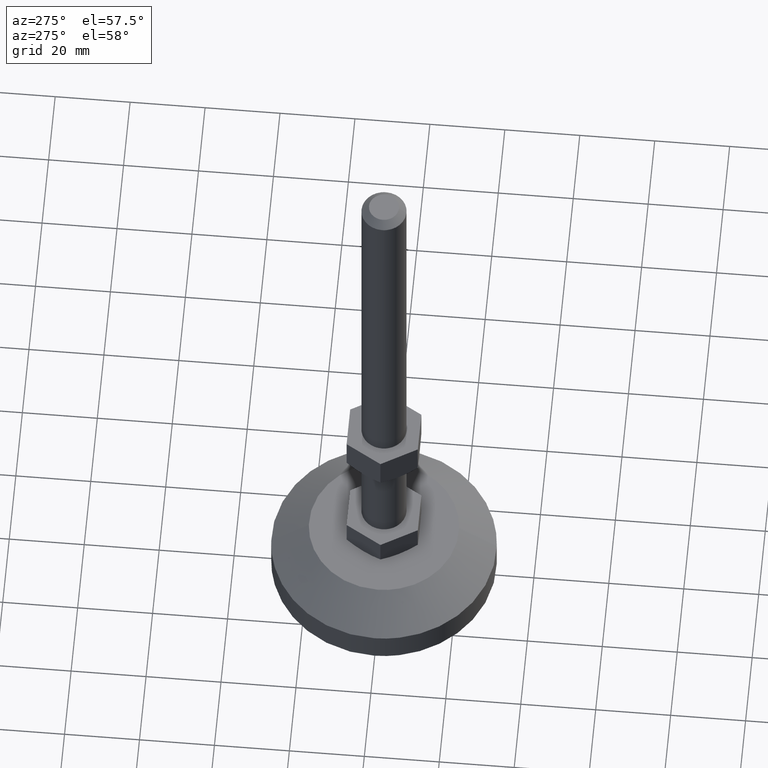
[diagram: clean part render]
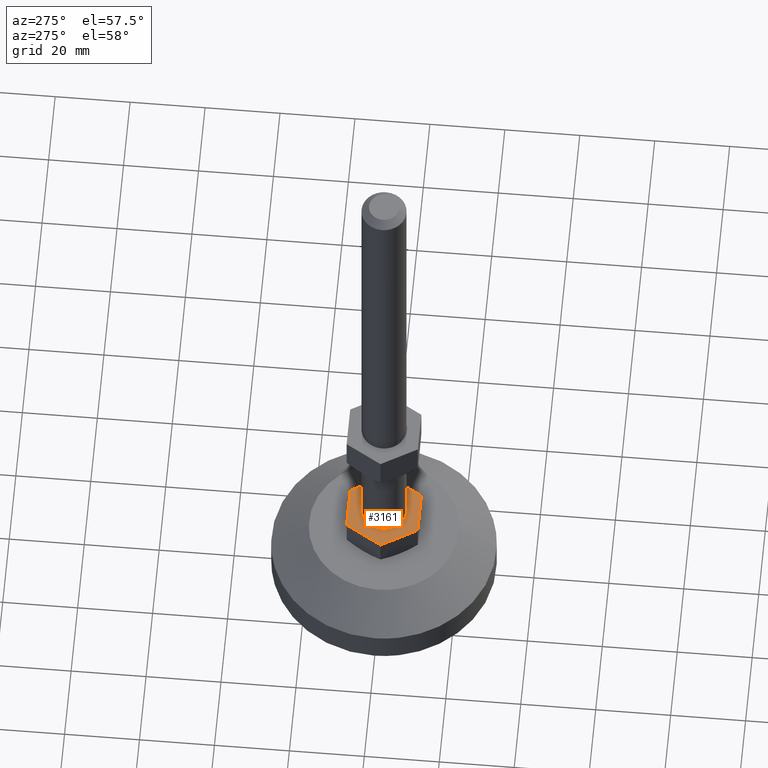
[diagram: same view with one face highlighted and labeled with its STEP entity id]
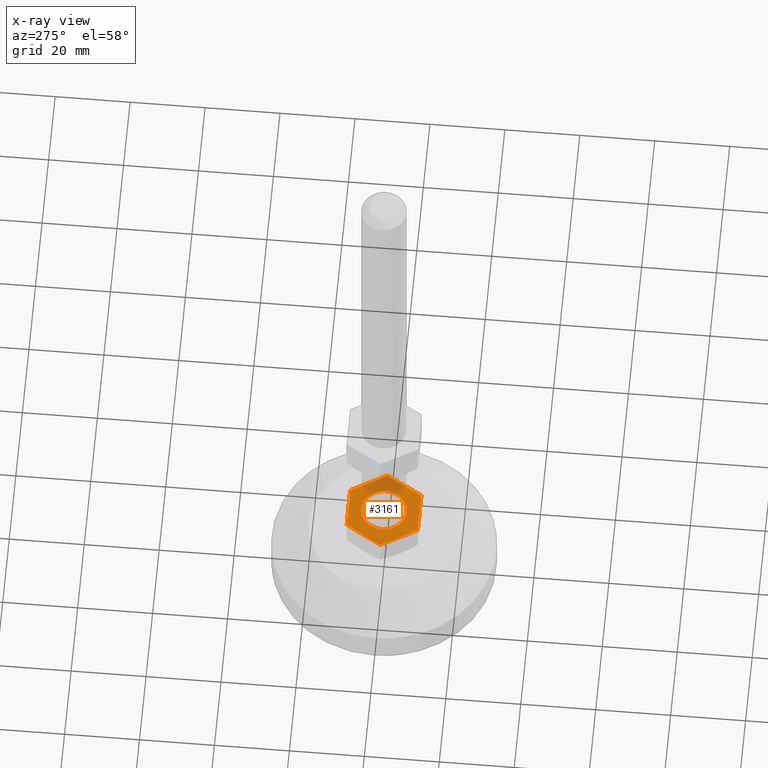
[diagram: x-ray of the same camera — body ghosted, the highlighted face saturated]
A machine part, auxiliary view. The second image highlights one B-rep face of the part: STEP entity #3161.
The next image is the same camera in x-ray: the body ghosted, the highlighted face saturated — about 20% of this face is hidden behind the body in this view.
In plain terms, the highlighted face is a freeform B-spline surface patch.
Its self-contained STEP definition (entity closure, byte-faithful):
#2878=CARTESIAN_POINT('',(0.366291237476672,-5.988808790514838,25.0));
#2879=VERTEX_POINT('',#2878);
#2880=CARTESIAN_POINT('',(-6.0,0.0,25.0));
#2881=VERTEX_POINT('',#2880);
#2882=CARTESIAN_POINT('',(0.366291237476672,-5.988808790514838,24.999999999999993));
#2883=CARTESIAN_POINT('',(0.183316579925674,-5.999999999999999,25.000000000000004));
#2884=CARTESIAN_POINT('',(0.0,-6.0,25.0));
#2885=CARTESIAN_POINT('',(-6.0,-6.0,25.0));
#2886=CARTESIAN_POINT('',(-6.0,0.0,25.0));
#2894=(BOUNDED_CURVE()B_SPLINE_CURVE(2,(#2882,#2883,#2884,#2885,#2886),.UNSPECIFIED.,.F.,.U.)B_SPLINE_CURVE_WITH_KNOTS((3,2,3),(0.239332962234260,0.250000000000000,0.500000000000000),.UNSPECIFIED.)CURVE()GEOMETRIC_REPRESENTATION_ITEM()RATIONAL_B_SPLINE_CURVE((0.976072041656682,0.987502787894351,1.0,0.707106781186548,1.0))REPRESENTATION_ITEM(''));
#2895=EDGE_CURVE('',#2879,#2881,#2894,.T.);
#2905=CARTESIAN_POINT('',(-0.366291237476671,5.988808790514838,25.0));
#2906=VERTEX_POINT('',#2905);
#2912=CARTESIAN_POINT('',(-6.0,0.0,25.0));
#2913=CARTESIAN_POINT('',(-6.0,5.644236401181561,24.999999999999993));
#2914=CARTESIAN_POINT('',(-0.366291237476671,5.988808790514840,24.999999999999993));
#2922=(BOUNDED_CURVE()B_SPLINE_CURVE(2,(#2912,#2913,#2914),.UNSPECIFIED.,.F.,.U.)B_SPLINE_CURVE_WITH_KNOTS((3,3),(0.500000000000000,0.739332962234260),.UNSPECIFIED.)CURVE()GEOMETRIC_REPRESENTATION_ITEM()RATIONAL_B_SPLINE_CURVE((1.0,0.719603993292196,0.976072041656682))REPRESENTATION_ITEM(''));
#2923=EDGE_CURVE('',#2881,#2906,#2922,.T.);
#2946=CARTESIAN_POINT('',(6.0,0.0,25.0));
#2947=VERTEX_POINT('',#2946);
#2948=CARTESIAN_POINT('',(6.0,0.0,25.0));
#2949=CARTESIAN_POINT('',(6.000000000000001,-5.644236401181561,24.999999999999993));
#2950=CARTESIAN_POINT('',(0.366291237476672,-5.988808790514838,24.999999999999993));
#2958=(BOUNDED_CURVE()B_SPLINE_CURVE(2,(#2948,#2949,#2950),.UNSPECIFIED.,.F.,.U.)B_SPLINE_CURVE_WITH_KNOTS((3,3),(0.0,0.239332962234260),.UNSPECIFIED.)CURVE()GEOMETRIC_REPRESENTATION_ITEM()RATIONAL_B_SPLINE_CURVE((1.0,0.719603993292196,0.976072041656682))REPRESENTATION_ITEM(''));
#2959=EDGE_CURVE('',#2947,#2879,#2958,.T.);
#2961=CARTESIAN_POINT('',(-0.366291237476671,5.988808790514840,24.999999999999993));
#2962=CARTESIAN_POINT('',(-0.183316579925673,6.000000000000001,25.000000000000004));
#2963=CARTESIAN_POINT('',(0.0,6.0,25.0));
#2964=CARTESIAN_POINT('',(6.0,6.0,25.0));
#2965=CARTESIAN_POINT('',(6.0,0.0,25.0));
#2973=(BOUNDED_CURVE()B_SPLINE_CURVE(2,(#2961,#2962,#2963,#2964,#2965),.UNSPECIFIED.,.F.,.U.)B_SPLINE_CURVE_WITH_KNOTS((3,2,3),(0.739332962234260,0.750000000000000,1.0),.UNSPECIFIED.)CURVE()GEOMETRIC_REPRESENTATION_ITEM()RATIONAL_B_SPLINE_CURVE((0.976072041656682,0.987502787894351,1.0,0.707106781186548,1.0))REPRESENTATION_ITEM(''));
#2974=EDGE_CURVE('',#2906,#2947,#2973,.T.);
#3106=CARTESIAN_POINT('',(-12.065523491977361,-10.449049963174200,25.0));
#3107=CARTESIAN_POINT('',(12.065524080435511,-10.449049963174200,25.0));
#3108=CARTESIAN_POINT('',(-12.065523491977361,10.449050472794140,25.0));
#3109=CARTESIAN_POINT('',(12.065524080435511,10.449050472794140,25.0));
#3110=B_SPLINE_SURFACE_WITH_KNOTS('',1,1,((#3106,#3108),(#3107,#3109)),.UNSPECIFIED.,.F.,.F.,.U.,(2,2),(2,2),(0.0,24.131047572412871),(0.0,20.898100435968342),.UNSPECIFIED.);
#3111=CARTESIAN_POINT('',(-5.484827000000000,-9.499999999999890,25.0));
#3112=VERTEX_POINT('',#3111);
#3113=CARTESIAN_POINT('',(-10.969654999999999,0.0,25.0));
#3114=VERTEX_POINT('',#3113);
#3115=CARTESIAN_POINT('',(-5.484827000000000,-9.499999999999890,25.0));
#3116=CARTESIAN_POINT('',(-10.969654999999999,0.0,25.0));
#3117=QUASI_UNIFORM_CURVE('',1,(#3115,#3116),.UNSPECIFIED.,.F.,.U.);
#3118=EDGE_CURVE('',#3112,#3114,#3117,.T.);
#3119=ORIENTED_EDGE('',*,*,#3118,.F.);
#3120=CARTESIAN_POINT('',(5.484827999999999,-9.499999999999890,25.0));
#3121=VERTEX_POINT('',#3120);
#3122=CARTESIAN_POINT('',(5.484827999999999,-9.499999999999890,25.0));
#3123=CARTESIAN_POINT('',(-5.484827000000000,-9.499999999999890,25.0));
#3124=QUASI_UNIFORM_CURVE('',1,(#3122,#3123),.UNSPECIFIED.,.F.,.U.);
#3125=EDGE_CURVE('',#3121,#3112,#3124,.T.);
#3126=ORIENTED_EDGE('',*,*,#3125,.F.);
#3127=CARTESIAN_POINT('',(10.969654999999999,0.0,25.0));
#3128=VERTEX_POINT('',#3127);
#3129=CARTESIAN_POINT('',(10.969654999999999,0.0,25.0));
#3130=CARTESIAN_POINT('',(5.484827999999999,-9.499999999999890,25.0));
#3131=QUASI_UNIFORM_CURVE('',1,(#3129,#3130),.UNSPECIFIED.,.F.,.U.);
#3132=EDGE_CURVE('',#3128,#3121,#3131,.T.);
#3133=ORIENTED_EDGE('',*,*,#3132,.F.);
#3134=CARTESIAN_POINT('',(5.484827999999999,9.500000000000108,25.0));
#3135=VERTEX_POINT('',#3134);
#3136=CARTESIAN_POINT('',(5.484827999999999,9.500000000000108,25.0));
#3137=CARTESIAN_POINT('',(10.969654999999999,0.0,25.0));
#3138=QUASI_UNIFORM_CURVE('',1,(#3136,#3137),.UNSPECIFIED.,.F.,.U.);
#3139=EDGE_CURVE('',#3135,#3128,#3138,.T.);
#3140=ORIENTED_EDGE('',*,*,#3139,.F.);
#3141=CARTESIAN_POINT('',(-5.484827000000000,9.500000000000108,25.0));
#3142=VERTEX_POINT('',#3141);
#3143=CARTESIAN_POINT('',(-5.484827000000000,9.500000000000108,25.0));
#3144=CARTESIAN_POINT('',(5.484827999999999,9.500000000000108,25.0));
#3145=QUASI_UNIFORM_CURVE('',1,(#3143,#3144),.UNSPECIFIED.,.F.,.U.);
#3146=EDGE_CURVE('',#3142,#3135,#3145,.T.);
#3147=ORIENTED_EDGE('',*,*,#3146,.F.);
#3148=CARTESIAN_POINT('',(-10.969654999999999,0.0,25.0));
#3149=CARTESIAN_POINT('',(-5.484827000000000,9.500000000000108,25.0));
#3150=QUASI_UNIFORM_CURVE('',1,(#3148,#3149),.UNSPECIFIED.,.F.,.U.);
#3151=EDGE_CURVE('',#3114,#3142,#3150,.T.);
#3152=ORIENTED_EDGE('',*,*,#3151,.F.);
#3153=EDGE_LOOP('',(#3119,#3126,#3133,#3140,#3147,#3152));
#3154=FACE_OUTER_BOUND('',#3153,.T.);
#3155=ORIENTED_EDGE('',*,*,#2923,.T.);
#3156=ORIENTED_EDGE('',*,*,#2974,.T.);
#3157=ORIENTED_EDGE('',*,*,#2959,.T.);
#3158=ORIENTED_EDGE('',*,*,#2895,.T.);
#3159=EDGE_LOOP('',(#3155,#3156,#3157,#3158));
#3160=FACE_BOUND('',#3159,.T.);
#3161=ADVANCED_FACE('',(#3154,#3160),#3110,.T.);